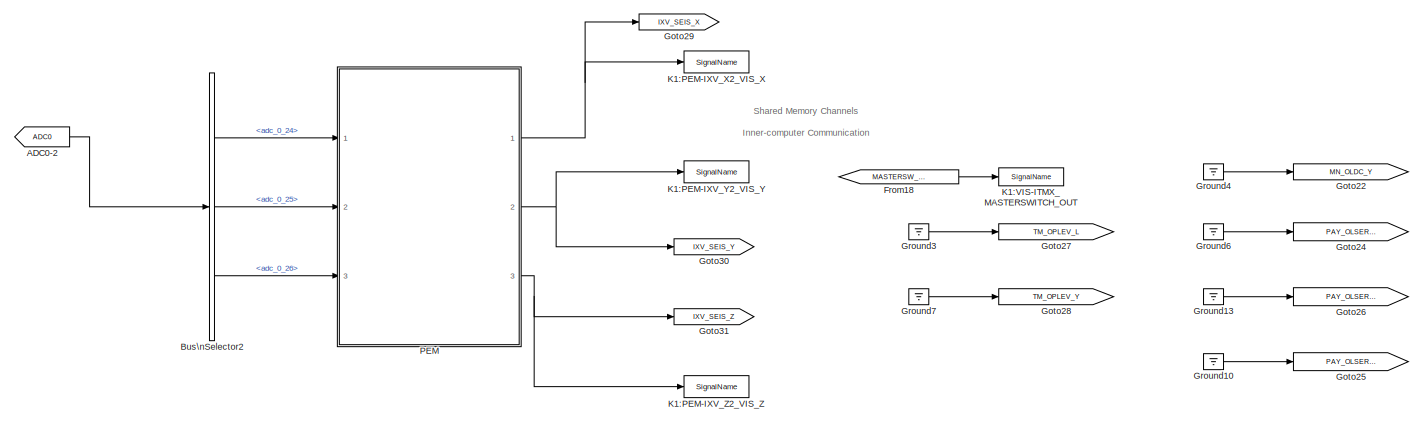
[diagram: root canvas - part 1/5, top left region]
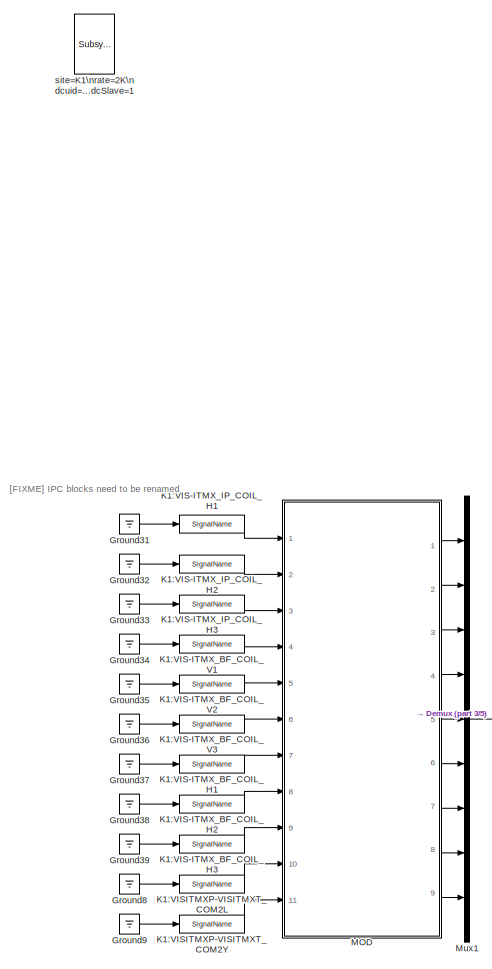
[diagram: root canvas - part 2/5, middle left region]
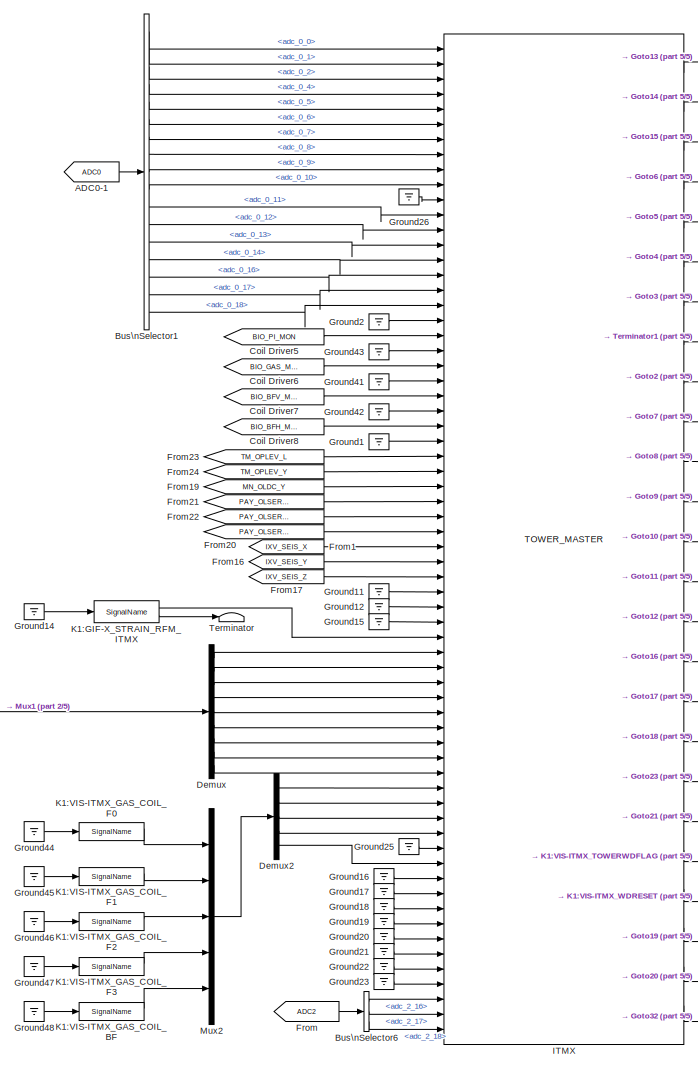
[diagram: root canvas - part 3/5, central region]
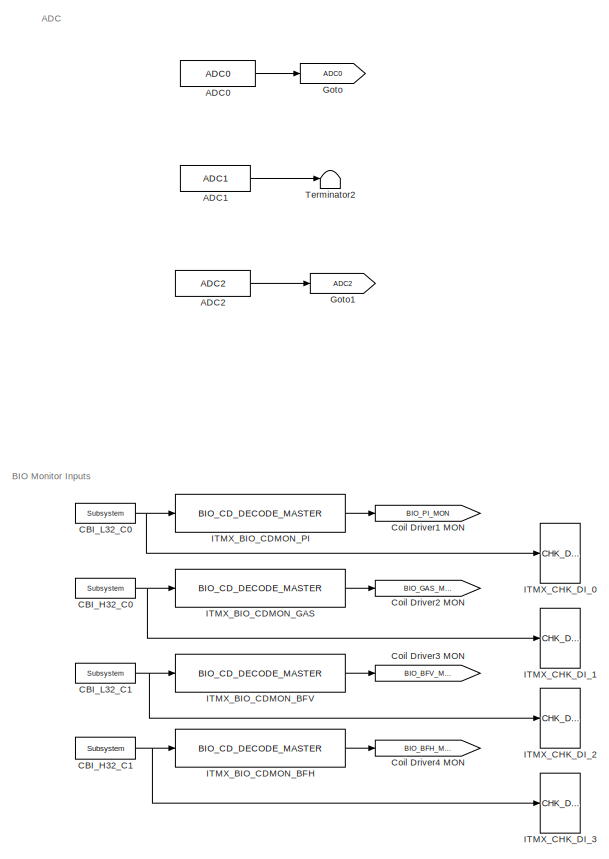
[diagram: root canvas - part 4/5, middle right region]
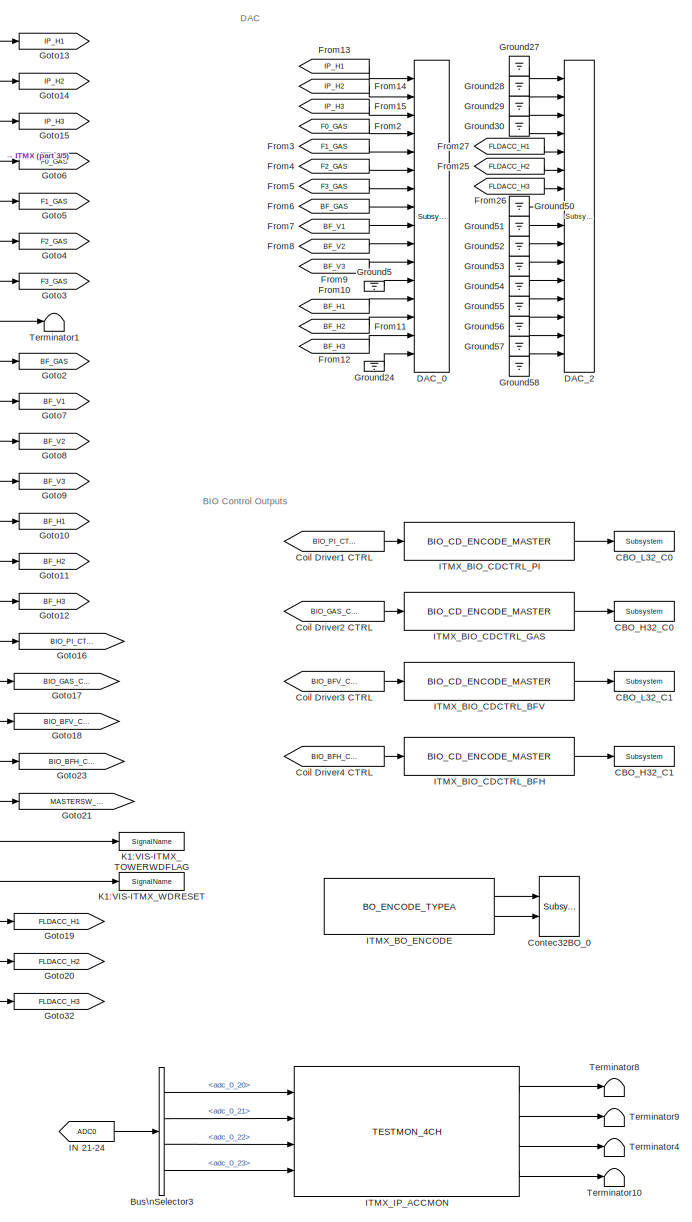
[diagram: root canvas - part 5/5, central region]
MODEL k1visitmxt
KIND model
BLOCK [Reference] ADC0  REF=cdsAdcx0/ADC0
  AttributesFormatString = %<Description>\\n%<Tag>
  Description = type-GSC_16AI64SSA\ncard_num=0
  Ports = [0, 1]
  SID = 51
  SourceBlock = cdsAdcx0/ADC0
  SourceType = SubSystem
  Tag = cdsAdc
BLOCK [From] ADC0-1
  GotoTag = ADC0
  SID = 695
BLOCK [From] ADC0-2
  GotoTag = ADC0
  SID = 856
BLOCK [Reference] ADC1  REF=cdsAdcx1/ADC1
  AttributesFormatString = %<Description>\\n%<Tag>
  Description = type-GSC_16AI64SSA\ncard_num=1
  Ports = [0, 1]
  SID = 958
  SourceBlock = cdsAdcx1/ADC1
  SourceType = SubSystem
  Tag = cdsAdc
BLOCK [Reference] ADC2  REF=cdsAdcx2/ADC2
  AttributesFormatString = %<Description>\\n%<Tag>
  Description = type-GSC_16AI64SSA\ncard_num=2
  Ports = [0, 1]
  SID = 959
  SourceBlock = cdsAdcx2/ADC2
  SourceType = SubSystem
  Tag = cdsAdc
BLOCK [BusSelector] Bus\nSelector1
  OutputSignals = adc_0_0,adc_0_1,adc_0_2,adc_0_4,adc_0_5,adc_0_6,adc_0_7,adc_0_8,adc_0_9,adc_0_10,adc_0_11,adc_0_12,adc_0_13,adc_0_14,adc_0_16,adc_0_17,adc_0_18
  Ports = [1, 17]
  SID = 694
BLOCK [BusSelector] Bus\nSelector2
  OutputSignals = adc_0_24,adc_0_25,adc_0_26
  Ports = [1, 3]
  SID = 857
BLOCK [BusSelector] Bus\nSelector3
  OutputSignals = adc_0_20,adc_0_21,adc_0_22,adc_0_23
  Ports = [1, 4]
  SID = 286
BLOCK [BusSelector] Bus\nSelector6
  AttributesFormatString = %<Description>
  Description = ADC Selector
  OutputSignals = adc_2_16,adc_2_17,adc_2_18
  Ports = [1, 3]
  SID = 964
BLOCK [Reference] CBI_H32_C0  REF=cdsCDI64/Subsystem
  AttributesFormatString = %<Tag>\\n%<Description>
  Description = card_num=1
  Ports = [0, 1]
  SID = 130
  SourceBlock = cdsCDI64/Subsystem
  SourceType = SubSystem
  Tag = cdsCDI64
BLOCK [Reference] CBI_H32_C1  REF=cdsCDI64/Subsystem
  AttributesFormatString = %<Tag>\\n%<Description>
  Description = card_num=3
  Ports = [0, 1]
  SID = 225
  SourceBlock = cdsCDI64/Subsystem
  SourceType = SubSystem
  Tag = cdsCDI64
BLOCK [Reference] CBI_L32_C0  REF=cdsCDI64/Subsystem
  AttributesFormatString = %<Tag>\\n%<Description>
  Description = card_num=0
  Ports = [0, 1]
  SID = 131
  SourceBlock = cdsCDI64/Subsystem
  SourceType = SubSystem
  Tag = cdsCDI64
BLOCK [Reference] CBI_L32_C1  REF=cdsCDI64/Subsystem
  AttributesFormatString = %<Tag>\\n%<Description>
  Description = card_num=2
  Ports = [0, 1]
  SID = 226
  SourceBlock = cdsCDI64/Subsystem
  SourceType = SubSystem
  Tag = cdsCDI64
BLOCK [Reference] CBO_H32_C0  REF=cdsCDO64/Subsystem
  AttributesFormatString = %<Tag>\\n%<Description>
  Description = card_num=1
  Ports = [1]
  SID = 132
  SourceBlock = cdsCDO64/Subsystem
  SourceType = SubSystem
  Tag = cdsCDO64
BLOCK [Reference] CBO_H32_C1  REF=cdsCDO64/Subsystem
  AttributesFormatString = %<Tag>\\n%<Description>
  Description = card_num=3
  Ports = [1]
  SID = 227
  SourceBlock = cdsCDO64/Subsystem
  SourceType = SubSystem
  Tag = cdsCDO64
BLOCK [Reference] CBO_L32_C0  REF=cdsCDO64/Subsystem
  AttributesFormatString = %<Tag>\\n%<Description>
  Description = card_num=0
  Ports = [1]
  SID = 133
  SourceBlock = cdsCDO64/Subsystem
  SourceType = SubSystem
  Tag = cdsCDO64
BLOCK [Reference] CBO_L32_C1  REF=cdsCDO64/Subsystem
  AttributesFormatString = %<Tag>\\n%<Description>
  Description = card_num=2
  Ports = [1]
  SID = 228
  SourceBlock = cdsCDO64/Subsystem
  SourceType = SubSystem
  Tag = cdsCDO64
BLOCK [From] Coil Driver1 CTRL
  GotoTag = BIO_PI_CTRL
  SID = 247
BLOCK [Goto] Coil Driver1 MON
  GotoTag = BIO_PI_MON
  SID = 258
BLOCK [From] Coil Driver2 CTRL
  GotoTag = BIO_GAS_CTRL
  SID = 253
BLOCK [Goto] Coil Driver2 MON
  GotoTag = BIO_GAS_MON
  SID = 259
BLOCK [From] Coil Driver3 CTRL
  GotoTag = BIO_BFV_CTRL
  SID = 254
BLOCK [Goto] Coil Driver3 MON
  GotoTag = BIO_BFV_MON
  SID = 260
BLOCK [From] Coil Driver4 CTRL
  GotoTag = BIO_BFH_CTRL
  SID = 265
BLOCK [Goto] Coil Driver4 MON
  GotoTag = BIO_BFH_MON
  SID = 261
BLOCK [From] Coil Driver5
  GotoTag = BIO_PI_MON
  SID = 266
BLOCK [From] Coil Driver6
  GotoTag = BIO_GAS_MON
  SID = 267
BLOCK [From] Coil Driver7
  GotoTag = BIO_BFV_MON
  SID = 268
BLOCK [From] Coil Driver8
  GotoTag = BIO_BFH_MON
  SID = 269
BLOCK [Reference] Contec32BO_0  REF=cdsCDO32/Subsystem
  AttributesFormatString = %<Tag>
  Description = Contec32 bit binary output module driver
  Ports = [2]
  SID = 418
  SourceBlock = cdsCDO32/Subsystem
  SourceType = SubSystem
  Tag = cdsCDO32
BLOCK [Reference] DAC_0  REF=dac/Subsystem  (lib defined in slx_40ef132df75b, slx_b7657ccccc5b, +4 more)
  AttributesFormatString = %<Description>
  Description = type=GSC_16AO16,\ncard_num=0
  Ports = [16]
  SID = 5
  SourceBlock = dac/Subsystem
  SourceType = SubSystem
BLOCK [Reference] DAC_2  REF=dac/Subsystem  (lib defined in slx_40ef132df75b, slx_b7657ccccc5b, +4 more)
  AttributesFormatString = %<Description>
  Description = type=GSC_16AO16,\ncard_num=2
  Ports = [16]
  SID = 966
  SourceBlock = dac/Subsystem
  SourceType = SubSystem
BLOCK [Demux] Demux
  DisplayOption = bar
  Outputs = 9
  Ports = [1, 9]
  SID = 845
BLOCK [Demux] Demux2
  DisplayOption = bar
  Outputs = 5
  Ports = [1, 5]
  SID = 938
BLOCK [From] From
  GotoTag = ADC2
  SID = 963
BLOCK [From] From1
  GotoTag = IXV_SEIS_X
  SID = 752
BLOCK [From] From10
  GotoTag = BF_H1
  SID = 215
BLOCK [From] From11
  GotoTag = BF_H2
  SID = 216
BLOCK [From] From12
  GotoTag = BF_H3
  SID = 217
BLOCK [From] From13
  GotoTag = IP_H1
  SID = 221
BLOCK [From] From14
  GotoTag = IP_H2
  SID = 222
BLOCK [From] From15
  GotoTag = IP_H3
  SID = 223
BLOCK [From] From16
  GotoTag = IXV_SEIS_Y
  SID = 753
BLOCK [From] From17
  GotoTag = IXV_SEIS_Z
  SID = 754
BLOCK [From] From18
  GotoTag = MASTERSW_CTRL
  SID = 755
BLOCK [From] From19
  GotoTag = MN_OLDC_Y
  SID = 758
BLOCK [From] From2
  GotoTag = F0_GAS
  SID = 152
BLOCK [From] From20
  GotoTag = PAY_OLSERVO_BFY
  SID = 759
BLOCK [From] From21
  GotoTag = PAY_OLSERVO_BFL
  SID = 769
BLOCK [From] From22
  GotoTag = PAY_OLSERVO_BFT
  SID = 770
BLOCK [From] From23
  GotoTag = TM_OPLEV_L
  SID = 771
BLOCK [From] From24
  GotoTag = TM_OPLEV_Y
  SID = 772
BLOCK [From] From25
  GotoTag = FLDACC_H2
  SID = 986
BLOCK [From] From26
  GotoTag = FLDACC_H3
  SID = 987
BLOCK [From] From27
  GotoTag = FLDACC_H1
  SID = 988
BLOCK [From] From3
  GotoTag = F1_GAS
  SID = 153
BLOCK [From] From4
  GotoTag = F2_GAS
  SID = 154
BLOCK [From] From5
  GotoTag = F3_GAS
  SID = 155
BLOCK [From] From6
  GotoTag = BF_GAS
  SID = 156
BLOCK [From] From7
  GotoTag = BF_V1
  SID = 212
BLOCK [From] From8
  GotoTag = BF_V2
  SID = 213
BLOCK [From] From9
  GotoTag = BF_V3
  SID = 214
BLOCK [Goto] Goto
  GotoTag = ADC0
  SID = 125
BLOCK [Goto] Goto1
  GotoTag = ADC2
  SID = 962
BLOCK [Goto] Goto10
  GotoTag = BF_H1
  SID = 209
BLOCK [Goto] Goto11
  GotoTag = BF_H2
  SID = 210
BLOCK [Goto] Goto12
  GotoTag = BF_H3
  SID = 211
BLOCK [Goto] Goto13
  GotoTag = IP_H1
  SID = 218
BLOCK [Goto] Goto14
  GotoTag = IP_H2
  SID = 219
BLOCK [Goto] Goto15
  GotoTag = IP_H3
  SID = 220
BLOCK [Goto] Goto16
  GotoTag = BIO_PI_CTRL
  SID = 248
BLOCK [Goto] Goto17
  GotoTag = BIO_GAS_CTRL
  SID = 251
BLOCK [Goto] Goto18
  GotoTag = BIO_BFV_CTRL
  SID = 252
BLOCK [Goto] Goto19
  GotoTag = FLDACC_H1
  SID = 967
BLOCK [Goto] Goto2
  GotoTag = BF_GAS
  SID = 177
BLOCK [Goto] Goto20
  GotoTag = FLDACC_H2
  SID = 968
BLOCK [Goto] Goto21
  GotoTag = MASTERSW_CTRL
  SID = 749
BLOCK [Goto] Goto22
  GotoTag = MN_OLDC_Y
  SID = 750
BLOCK [Goto] Goto23
  GotoTag = BIO_BFH_CTRL
  SID = 264
BLOCK [Goto] Goto24
  GotoTag = PAY_OLSERVO_BFY
  SID = 751
BLOCK [Goto] Goto25
  GotoTag = PAY_OLSERVO_BFL
  SID = 761
BLOCK [Goto] Goto26
  GotoTag = PAY_OLSERVO_BFT
  SID = 765
BLOCK [Goto] Goto27
  GotoTag = TM_OPLEV_L
  SID = 773
BLOCK [Goto] Goto28
  GotoTag = TM_OPLEV_Y
  SID = 777
BLOCK [Goto] Goto29
  GotoTag = IXV_SEIS_X
  SID = 865
BLOCK [Goto] Goto3
  GotoTag = F3_GAS
  SID = 148
BLOCK [Goto] Goto30
  GotoTag = IXV_SEIS_Y
  SID = 866
BLOCK [Goto] Goto31
  GotoTag = IXV_SEIS_Z
  SID = 867
BLOCK [Goto] Goto32
  GotoTag = FLDACC_H3
  SID = 969
BLOCK [Goto] Goto4
  GotoTag = F2_GAS
  SID = 149
BLOCK [Goto] Goto5
  GotoTag = F1_GAS
  SID = 150
BLOCK [Goto] Goto6
  GotoTag = F0_GAS
  SID = 151
BLOCK [Goto] Goto7
  GotoTag = BF_V1
  SID = 206
BLOCK [Goto] Goto8
  GotoTag = BF_V2
  SID = 207
BLOCK [Goto] Goto9
  GotoTag = BF_V3
  SID = 208
BLOCK [Ground] Ground1
  SID = 785
BLOCK [Ground] Ground10
  SID = 762
BLOCK [Ground] Ground11
  SID = 735
BLOCK [Ground] Ground12
  SID = 945
BLOCK [Ground] Ground13
  SID = 766
BLOCK [Ground] Ground14
  SID = 782
BLOCK [Ground] Ground15
  SID = 946
BLOCK [Ground] Ground16
  SID = 947
BLOCK [Ground] Ground17
  SID = 948
BLOCK [Ground] Ground18
  SID = 949
BLOCK [Ground] Ground19
  SID = 950
BLOCK [Ground] Ground2
  SID = 730
BLOCK [Ground] Ground20
  SID = 951
BLOCK [Ground] Ground21
  SID = 952
BLOCK [Ground] Ground22
  SID = 953
BLOCK [Ground] Ground23
  SID = 954
BLOCK [Ground] Ground24
  SID = 304
BLOCK [Ground] Ground25
  SID = 955
BLOCK [Ground] Ground26
  SID = 956
BLOCK [Ground] Ground27
  SID = 970
BLOCK [Ground] Ground28
  SID = 971
BLOCK [Ground] Ground29
  SID = 972
BLOCK [Ground] Ground3
  SID = 774
BLOCK [Ground] Ground30
  SID = 973
BLOCK [Ground] Ground31
  SID = 885
BLOCK [Ground] Ground32
  SID = 886
BLOCK [Ground] Ground33
  SID = 887
BLOCK [Ground] Ground34
  SID = 888
BLOCK [Ground] Ground35
  SID = 889
BLOCK [Ground] Ground36
  SID = 890
BLOCK [Ground] Ground37
  SID = 891
BLOCK [Ground] Ground38
  SID = 892
BLOCK [Ground] Ground39
  SID = 893
BLOCK [Ground] Ground4
  SID = 709
BLOCK [Ground] Ground41
  SID = 405
BLOCK [Ground] Ground42
  SID = 406
BLOCK [Ground] Ground43
  SID = 407
BLOCK [Ground] Ground44
  SID = 927
BLOCK [Ground] Ground45
  SID = 928
BLOCK [Ground] Ground46
  SID = 929
BLOCK [Ground] Ground47
  SID = 930
BLOCK [Ground] Ground48
  SID = 931
BLOCK [Ground] Ground5
  SID = 303
BLOCK [Ground] Ground50
  SID = 976
BLOCK [Ground] Ground51
  SID = 977
BLOCK [Ground] Ground52
  SID = 978
BLOCK [Ground] Ground53
  SID = 979
BLOCK [Ground] Ground54
  SID = 980
BLOCK [Ground] Ground55
  SID = 981
BLOCK [Ground] Ground56
  SID = 982
BLOCK [Ground] Ground57
  SID = 983
BLOCK [Ground] Ground58
  SID = 984
BLOCK [Ground] Ground6
  SID = 710
BLOCK [Ground] Ground7
  SID = 778
BLOCK [Ground] Ground8
  SID = 942
BLOCK [Ground] Ground9
  SID = 943
BLOCK [From] IN 21-24
  GotoTag = ADC0
  SID = 287
BLOCK [Reference] ITMX  REF=TOWER_MASTER/TOWER_MASTER
  Ports = [66, 25]
  SID = 944
  SourceBlock = TOWER_MASTER/TOWER_MASTER
  SourceType = SubSystem
BLOCK [Reference] ITMX_BIO_CDCTRL_BFH  REF=BIO_CD_ENCODE_MASTER/BIO_CD_ENCODE_MASTER
  Ports = [1, 1]
  SID = 244
  SourceBlock = BIO_CD_ENCODE_MASTER/BIO_CD_ENCODE_MASTER
  SourceType = SubSystem
BLOCK [Reference] ITMX_BIO_CDCTRL_BFV  REF=BIO_CD_ENCODE_MASTER/BIO_CD_ENCODE_MASTER
  Ports = [1, 1]
  SID = 243
  SourceBlock = BIO_CD_ENCODE_MASTER/BIO_CD_ENCODE_MASTER
  SourceType = SubSystem
BLOCK [Reference] ITMX_BIO_CDCTRL_GAS  REF=BIO_CD_ENCODE_MASTER/BIO_CD_ENCODE_MASTER
  Ports = [1, 1]
  SID = 242
  SourceBlock = BIO_CD_ENCODE_MASTER/BIO_CD_ENCODE_MASTER
  SourceType = SubSystem
BLOCK [Reference] ITMX_BIO_CDCTRL_PI  REF=BIO_CD_ENCODE_MASTER/BIO_CD_ENCODE_MASTER
  Ports = [1, 1]
  SID = 240
  SourceBlock = BIO_CD_ENCODE_MASTER/BIO_CD_ENCODE_MASTER
  SourceType = SubSystem
BLOCK [Reference] ITMX_BIO_CDMON_BFH  REF=BIO_CD_DECODE_MASTER/BIO_CD_DECODE_MASTER
  Ports = [1, 1]
  SID = 239
  SourceBlock = BIO_CD_DECODE_MASTER/BIO_CD_DECODE_MASTER
  SourceType = SubSystem
BLOCK [Reference] ITMX_BIO_CDMON_BFV  REF=BIO_CD_DECODE_MASTER/BIO_CD_DECODE_MASTER
  Ports = [1, 1]
  SID = 238
  SourceBlock = BIO_CD_DECODE_MASTER/BIO_CD_DECODE_MASTER
  SourceType = SubSystem
BLOCK [Reference] ITMX_BIO_CDMON_GAS  REF=BIO_CD_DECODE_MASTER/BIO_CD_DECODE_MASTER
  Ports = [1, 1]
  SID = 237
  SourceBlock = BIO_CD_DECODE_MASTER/BIO_CD_DECODE_MASTER
  SourceType = SubSystem
BLOCK [Reference] ITMX_BIO_CDMON_PI  REF=BIO_CD_DECODE_MASTER/BIO_CD_DECODE_MASTER
  Ports = [1, 1]
  SID = 235
  SourceBlock = BIO_CD_DECODE_MASTER/BIO_CD_DECODE_MASTER
  SourceType = SubSystem
BLOCK [Reference] ITMX_BO_ENCODE  REF=BO_TYPEA_MASTER/BO_ENCODE_TYPEA
  Ports = [0, 2]
  SID = 489
  SourceBlock = BO_TYPEA_MASTER/BO_ENCODE_TYPEA
  SourceType = SubSystem
BLOCK [Reference] ITMX_CHK_DI_0  REF=CHK_DIO/CHK_DI_0
  Ports = [1]
  SID = 683
  SourceBlock = CHK_DIO/CHK_DI_0
  SourceType = SubSystem
BLOCK [Reference] ITMX_CHK_DI_1  REF=CHK_DIO/CHK_DI_0
  Ports = [1]
  SID = 684
  SourceBlock = CHK_DIO/CHK_DI_0
  SourceType = SubSystem
BLOCK [Reference] ITMX_CHK_DI_2  REF=CHK_DIO/CHK_DI_0
  Ports = [1]
  SID = 685
  SourceBlock = CHK_DIO/CHK_DI_0
  SourceType = SubSystem
BLOCK [Reference] ITMX_CHK_DI_3  REF=CHK_DIO/CHK_DI_0
  Ports = [1]
  SID = 686
  SourceBlock = CHK_DIO/CHK_DI_0
  SourceType = SubSystem
BLOCK [Reference] ITMX_IP_ACCMON  REF=TESTMON_4CH_MASTER/TESTMON_4CH
  Ports = [4, 4]
  SID = 285
  SourceBlock = TESTMON_4CH_MASTER/TESTMON_4CH
  SourceType = SubSystem
BLOCK [Reference] K1:GIF-X_STRAIN_RFM_ITMX  REF=cdsIPCx/SignalName
  AttributesFormatString = %<Description>\\n%<Tag>
  Description = card=0
  Ports = [1, 2]
  SID = 783
  SourceBlock = cdsIPCx/SignalName
  SourceType = SubSystem
  Tag = cdsIPCx_RFM
BLOCK [Reference] K1:PEM-IXV_X2_VIS_X  REF=cdsIPCx/SignalName
  AttributesFormatString = %<Description>\\n%<Tag>
  Description = card=0
  Ports = [1, 2]
  SID = 849
  SourceBlock = cdsIPCx/SignalName
  SourceType = SubSystem
  Tag = cdsIPCx_RFM
BLOCK [Reference] K1:PEM-IXV_Y2_VIS_Y  REF=cdsIPCx/SignalName
  AttributesFormatString = %<Description>\\n%<Tag>
  Description = card=0
  Ports = [1, 2]
  SID = 851
  SourceBlock = cdsIPCx/SignalName
  SourceType = SubSystem
  Tag = cdsIPCx_RFM
BLOCK [Reference] K1:PEM-IXV_Z2_VIS_Z  REF=cdsIPCx/SignalName
  AttributesFormatString = %<Description>\\n%<Tag>
  Description = card=0
  Ports = [1, 2]
  SID = 853
  SourceBlock = cdsIPCx/SignalName
  SourceType = SubSystem
  Tag = cdsIPCx_RFM
BLOCK [Reference] K1:VIS-ITMX_BF_COIL_H1  REF=cdsIPCx/SignalName
  AttributesFormatString = %<Tag>
  Description = Inter-Process Communication via Shared memory.
  Ports = [1, 2]
  SID = 895
  SourceBlock = cdsIPCx/SignalName
  SourceType = SubSystem
  Tag = cdsIPCx_SHMEM
BLOCK [Reference] K1:VIS-ITMX_BF_COIL_H2  REF=cdsIPCx/SignalName
  AttributesFormatString = %<Tag>
  Description = Inter-Process Communication via Shared memory.
  Ports = [1, 2]
  SID = 896
  SourceBlock = cdsIPCx/SignalName
  SourceType = SubSystem
  Tag = cdsIPCx_SHMEM
BLOCK [Reference] K1:VIS-ITMX_BF_COIL_H3  REF=cdsIPCx/SignalName
  AttributesFormatString = %<Tag>
  Description = Inter-Process Communication via Shared memory.
  Ports = [1, 2]
  SID = 897
  SourceBlock = cdsIPCx/SignalName
  SourceType = SubSystem
  Tag = cdsIPCx_SHMEM
BLOCK [Reference] K1:VIS-ITMX_BF_COIL_V1  REF=cdsIPCx/SignalName
  AttributesFormatString = %<Tag>
  Description = Inter-Process Communication via Shared memory.
  Ports = [1, 2]
  SID = 898
  SourceBlock = cdsIPCx/SignalName
  SourceType = SubSystem
  Tag = cdsIPCx_SHMEM
BLOCK [Reference] K1:VIS-ITMX_BF_COIL_V2  REF=cdsIPCx/SignalName
  AttributesFormatString = %<Tag>
  Description = Inter-Process Communication via Shared memory.
  Ports = [1, 2]
  SID = 899
  SourceBlock = cdsIPCx/SignalName
  SourceType = SubSystem
  Tag = cdsIPCx_SHMEM
BLOCK [Reference] K1:VIS-ITMX_BF_COIL_V3  REF=cdsIPCx/SignalName
  AttributesFormatString = %<Tag>
  Description = Inter-Process Communication via Shared memory.
  Ports = [1, 2]
  SID = 900
  SourceBlock = cdsIPCx/SignalName
  SourceType = SubSystem
  Tag = cdsIPCx_SHMEM
BLOCK [Reference] K1:VIS-ITMX_GAS_COIL_BF  REF=cdsIPCx/SignalName
  AttributesFormatString = %<Tag>
  Description = Inter-Process Communication via Shared memory.
  Ports = [1, 2]
  SID = 932
  SourceBlock = cdsIPCx/SignalName
  SourceType = SubSystem
  Tag = cdsIPCx_SHMEM
BLOCK [Reference] K1:VIS-ITMX_GAS_COIL_F0  REF=cdsIPCx/SignalName
  AttributesFormatString = %<Tag>
  Description = Inter-Process Communication via Shared memory.
  Ports = [1, 2]
  SID = 933
  SourceBlock = cdsIPCx/SignalName
  SourceType = SubSystem
  Tag = cdsIPCx_SHMEM
BLOCK [Reference] K1:VIS-ITMX_GAS_COIL_F1  REF=cdsIPCx/SignalName
  AttributesFormatString = %<Tag>
  Description = Inter-Process Communication via Shared memory.
  Ports = [1, 2]
  SID = 934
  SourceBlock = cdsIPCx/SignalName
  SourceType = SubSystem
  Tag = cdsIPCx_SHMEM
BLOCK [Reference] K1:VIS-ITMX_GAS_COIL_F2  REF=cdsIPCx/SignalName
  AttributesFormatString = %<Tag>
  Description = Inter-Process Communication via Shared memory.
  Ports = [1, 2]
  SID = 935
  SourceBlock = cdsIPCx/SignalName
  SourceType = SubSystem
  Tag = cdsIPCx_SHMEM
BLOCK [Reference] K1:VIS-ITMX_GAS_COIL_F3  REF=cdsIPCx/SignalName
  AttributesFormatString = %<Tag>
  Description = Inter-Process Communication via Shared memory.
  Ports = [1, 2]
  SID = 936
  SourceBlock = cdsIPCx/SignalName
  SourceType = SubSystem
  Tag = cdsIPCx_SHMEM
BLOCK [Reference] K1:VIS-ITMX_IP_COIL_H1  REF=cdsIPCx/SignalName
  AttributesFormatString = %<Tag>
  Description = Inter-Process Communication via Shared memory.
  Ports = [1, 2]
  SID = 901
  SourceBlock = cdsIPCx/SignalName
  SourceType = SubSystem
  Tag = cdsIPCx_SHMEM
BLOCK [Reference] K1:VIS-ITMX_IP_COIL_H2  REF=cdsIPCx/SignalName
  AttributesFormatString = %<Tag>
  Description = Inter-Process Communication via Shared memory.
  Ports = [1, 2]
  SID = 902
  SourceBlock = cdsIPCx/SignalName
  SourceType = SubSystem
  Tag = cdsIPCx_SHMEM
BLOCK [Reference] K1:VIS-ITMX_IP_COIL_H3  REF=cdsIPCx/SignalName
  AttributesFormatString = %<Tag>
  Description = Inter-Process Communication via Shared memory.
  Ports = [1, 2]
  SID = 903
  SourceBlock = cdsIPCx/SignalName
  SourceType = SubSystem
  Tag = cdsIPCx_SHMEM
BLOCK [Reference] K1:VIS-ITMX_MASTERSWITCH_OUT  REF=cdsIPCx/SignalName
  AttributesFormatString = %<Tag>
  Description = Inter-Process Communication via Shared memory.
  Ports = [1, 2]
  SID = 696
  SourceBlock = cdsIPCx/SignalName
  SourceType = SubSystem
  Tag = cdsIPCx_SHMEM
BLOCK [Reference] K1:VIS-ITMX_TOWERWDFLAG  REF=cdsIPCx/SignalName
  AttributesFormatString = %<Tag>
  Description = Inter-Process Communication via Shared memory.
  Ports = [1, 2]
  SID = 712
  SourceBlock = cdsIPCx/SignalName
  SourceType = SubSystem
  Tag = cdsIPCx_SHMEM
BLOCK [Reference] K1:VIS-ITMX_WDRESET  REF=cdsIPCx/SignalName
  AttributesFormatString = %<Tag>
  Description = Inter-Process Communication via Shared memory.
  Ports = [1, 2]
  SID = 727
  SourceBlock = cdsIPCx/SignalName
  SourceType = SubSystem
  Tag = cdsIPCx_SHMEM
BLOCK [Reference] K1:VISITMXP-VISITMXT_COM2L  REF=cdsIPCx/SignalName
  AttributesFormatString = %<Tag>
  Description = Inter-Process Communication via Shared memory.
  Ports = [1, 2]
  SID = 939
  SourceBlock = cdsIPCx/SignalName
  SourceType = SubSystem
  Tag = cdsIPCx_SHMEM
BLOCK [Reference] K1:VISITMXP-VISITMXT_COM2Y  REF=cdsIPCx/SignalName
  AttributesFormatString = %<Tag>
  Description = Inter-Process Communication via Shared memory.
  Ports = [1, 2]
  SID = 940
  SourceBlock = cdsIPCx/SignalName
  SourceType = SubSystem
  Tag = cdsIPCx_SHMEM
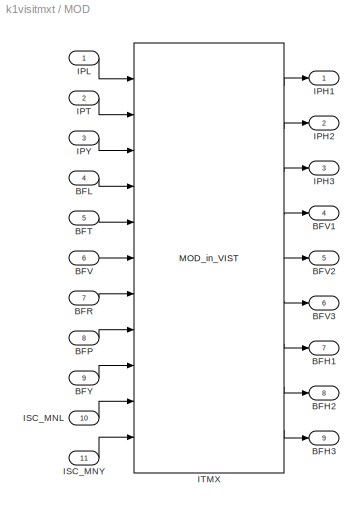
BLOCK [SubSystem] MOD
  Ports = [11, 9]
  RequestExecContextInheritance = off
  SID = 904
  Tag = top_names
  Variant = off
BLOCK [Outport] MOD/BFH1
  IconDisplay = Port number
  Port = 7
  SID = 922
BLOCK [Outport] MOD/BFH2
  IconDisplay = Port number
  Port = 8
  SID = 923
BLOCK [Outport] MOD/BFH3
  IconDisplay = Port number
  Port = 9
  SID = 924
BLOCK [Inport] MOD/BFL
  IconDisplay = Port number
  Port = 4
  SID = 908
BLOCK [Inport] MOD/BFP
  IconDisplay = Port number
  Port = 8
  SID = 912
BLOCK [Inport] MOD/BFR
  IconDisplay = Port number
  Port = 7
  SID = 911
BLOCK [Inport] MOD/BFT
  IconDisplay = Port number
  Port = 5
  SID = 909
BLOCK [Inport] MOD/BFV
  IconDisplay = Port number
  Port = 6
  SID = 910
BLOCK [Outport] MOD/BFV1
  IconDisplay = Port number
  Port = 4
  SID = 919
BLOCK [Outport] MOD/BFV2
  IconDisplay = Port number
  Port = 5
  SID = 920
BLOCK [Outport] MOD/BFV3
  IconDisplay = Port number
  Port = 6
  SID = 921
BLOCK [Inport] MOD/BFY
  IconDisplay = Port number
  Port = 9
  SID = 913
BLOCK [Outport] MOD/IPH1
  IconDisplay = Port number
  SID = 916
BLOCK [Outport] MOD/IPH2
  IconDisplay = Port number
  Port = 2
  SID = 917
BLOCK [Outport] MOD/IPH3
  IconDisplay = Port number
  Port = 3
  SID = 918
BLOCK [Inport] MOD/IPL
  IconDisplay = Port number
  SID = 905
BLOCK [Inport] MOD/IPT
  IconDisplay = Port number
  Port = 2
  SID = 906
BLOCK [Inport] MOD/IPY
  IconDisplay = Port number
  Port = 3
  SID = 907
BLOCK [Inport] MOD/ISC_MNL
  IconDisplay = Port number
  Port = 10
  SID = 914
BLOCK [Inport] MOD/ISC_MNY
  IconDisplay = Port number
  Port = 11
  SID = 941
BLOCK [Reference] MOD/ITMX  REF=VIS_LIB/MODAL/MOD_in_VIST
  Ports = [11, 9]
  SID = 915
  SourceBlock = VIS_LIB/MODAL/MOD_in_VIST
  SourceType = SubSystem
  Tag = top_names
BLOCK [Mux] Mux1
  DisplayOption = bar
  Inputs = 9
  Ports = [9, 1]
  SID = 925
BLOCK [Mux] Mux2
  DisplayOption = bar
  Inputs = 5
  Ports = [5, 1]
  SID = 937
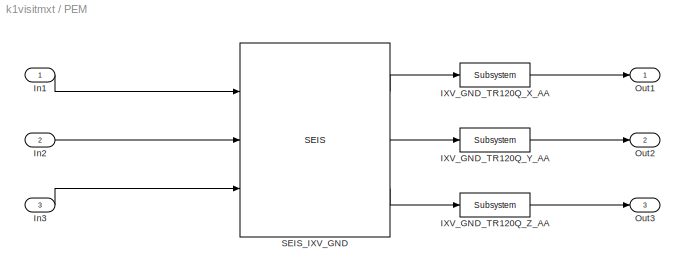
BLOCK [SubSystem] PEM
  AttributesFormatString = %<Tag>
  Ports = [3, 3]
  RequestExecContextInheritance = off
  SID = 871
  Tag = top_names
  Variant = off
BLOCK [Reference] PEM/IXV_GND_TR120Q_X_AA  REF=cdsFilt/Subsystem
  AttributesFormatString = %<Tag>
  Description = Purpose:                                                                                                                                                                                                                                  \nStandard CDS IIR filter module.                                                                                                                                     ...<+1302ch>  <repeated x3 — deduplicated; at blocks: IXV_GND_TR120Q_X_AA, IXV_GND_TR120Q_Y_AA, IXV_GND_TR120Q_Z_AA>
  Ports = [1, 1]
  SID = 875
  SourceBlock = cdsFilt/Subsystem
  SourceType = SubSystem
  Tag = cdsFilt
BLOCK [Reference] PEM/IXV_GND_TR120Q_Y_AA  REF=cdsFilt/Subsystem
  AttributesFormatString = %<Tag>
  Ports = [1, 1]
  SID = 876
  SourceBlock = cdsFilt/Subsystem
  SourceType = SubSystem
  Tag = cdsFilt
BLOCK [Reference] PEM/IXV_GND_TR120Q_Z_AA  REF=cdsFilt/Subsystem
  AttributesFormatString = %<Tag>
  Ports = [1, 1]
  SID = 877
  SourceBlock = cdsFilt/Subsystem
  SourceType = SubSystem
  Tag = cdsFilt
BLOCK [Inport] PEM/In1
  IconDisplay = Port number
  SID = 872
BLOCK [Inport] PEM/In2
  IconDisplay = Port number
  Port = 2
  SID = 873
BLOCK [Inport] PEM/In3
  IconDisplay = Port number
  Port = 3
  SID = 874
BLOCK [Outport] PEM/Out1
  IconDisplay = Port number
  SID = 879
BLOCK [Outport] PEM/Out2
  IconDisplay = Port number
  Port = 2
  SID = 880
BLOCK [Outport] PEM/Out3
  IconDisplay = Port number
  Port = 3
  SID = 881
BLOCK [Reference] PEM/SEIS_IXV_GND  REF=seis/SEIS
  Ports = [3, 3]
  SID = 878
  SourceBlock = seis/SEIS
  SourceType = SubSystem
BLOCK [Terminator] Terminator
  SID = 784
BLOCK [Terminator] Terminator1
  SID = 957
BLOCK [Terminator] Terminator10
  SID = 293
BLOCK [Terminator] Terminator2
  SID = 960
BLOCK [Terminator] Terminator4
  SID = 290
BLOCK [Terminator] Terminator8
  SID = 291
BLOCK [Terminator] Terminator9
  SID = 292
BLOCK [Reference] site=K1\nrate=2K\ndcuid=92\nhost=k1ix1\nspecific_cpu=2\nadcSlave=1  REF=cdsParameters/Subsystem
  AttributesFormatString = %<Tag>
  Description = Purpose:                                                                                                                                                                                                                                \nProvide system parameters to the FE code generator to properly configure the generated EPICS names, rep rate of the FE controller, and the Data Acquisition node ID fo...<+2934ch>
  Ports = []
  SID = 716
  SourceBlock = cdsParameters/Subsystem
  SourceType = SubSystem
  Tag = cdsParameters
ANNOTATION (root): \n \n BIO Control Outputs
ANNOTATION (root): \n \n BIO Monitor Inputs
ANNOTATION (root): \n \n DAC
ANNOTATION (root): \n \n [FIXME] IPC blocks need to be renamed
ANNOTATION (root): \n \n Shared Memory Channels \n Inner-computer Communication
ANNOTATION (root): \n \n ADC
LINE ADC0-1:1 -> Bus\nSelector1:1
LINE ADC0-2:1 -> Bus\nSelector2:1
LINE ADC0:1 -> Goto:1
LINE ADC1:1 -> Terminator2:1
LINE ADC2:1 -> Goto1:1
LINE Bus\nSelector1:1 -> ITMX:1
LINE Bus\nSelector1:10 -> ITMX:10
LINE Bus\nSelector1:11 -> ITMX:12
LINE Bus\nSelector1:12 -> ITMX:13
LINE Bus\nSelector1:13 -> ITMX:14
LINE Bus\nSelector1:14 -> ITMX:15
LINE Bus\nSelector1:15 -> ITMX:16
LINE Bus\nSelector1:16 -> ITMX:17
LINE Bus\nSelector1:17 -> ITMX:18
LINE Bus\nSelector1:2 -> ITMX:2
LINE Bus\nSelector1:3 -> ITMX:3
LINE Bus\nSelector1:4 -> ITMX:4
LINE Bus\nSelector1:5 -> ITMX:5
LINE Bus\nSelector1:6 -> ITMX:6
LINE Bus\nSelector1:7 -> ITMX:7
LINE Bus\nSelector1:8 -> ITMX:8
LINE Bus\nSelector1:9 -> ITMX:9
LINE Bus\nSelector2:1 -> PEM:1
LINE Bus\nSelector2:2 -> PEM:2
LINE Bus\nSelector2:3 -> PEM:3
LINE Bus\nSelector3:1 -> ITMX_IP_ACCMON:1
LINE Bus\nSelector3:2 -> ITMX_IP_ACCMON:2
LINE Bus\nSelector3:3 -> ITMX_IP_ACCMON:3
LINE Bus\nSelector3:4 -> ITMX_IP_ACCMON:4
LINE Bus\nSelector6:1 -> ITMX:64
LINE Bus\nSelector6:2 -> ITMX:65
LINE Bus\nSelector6:3 -> ITMX:66
NET CBI_H32_C0:1 -> ITMX_BIO_CDMON_GAS:1, ITMX_CHK_DI_1:1
NET CBI_H32_C1:1 -> ITMX_BIO_CDMON_BFH:1, ITMX_CHK_DI_3:1
NET CBI_L32_C0:1 -> ITMX_BIO_CDMON_PI:1, ITMX_CHK_DI_0:1
NET CBI_L32_C1:1 -> ITMX_BIO_CDMON_BFV:1, ITMX_CHK_DI_2:1
LINE Coil Driver1 CTRL:1 -> ITMX_BIO_CDCTRL_PI:1
LINE Coil Driver2 CTRL:1 -> ITMX_BIO_CDCTRL_GAS:1
LINE Coil Driver3 CTRL:1 -> ITMX_BIO_CDCTRL_BFV:1
LINE Coil Driver4 CTRL:1 -> ITMX_BIO_CDCTRL_BFH:1
LINE Coil Driver5:1 -> ITMX:20
LINE Coil Driver6:1 -> ITMX:22
LINE Coil Driver7:1 -> ITMX:24
LINE Coil Driver8:1 -> ITMX:26
LINE Demux2:1 -> ITMX:50
LINE Demux2:2 -> ITMX:51
LINE Demux2:3 -> ITMX:52
LINE Demux2:4 -> ITMX:53
LINE Demux2:5 -> ITMX:55
LINE Demux:1 -> ITMX:41
LINE Demux:2 -> ITMX:42
LINE Demux:3 -> ITMX:43
LINE Demux:4 -> ITMX:44
LINE Demux:5 -> ITMX:45
LINE Demux:6 -> ITMX:46
LINE Demux:7 -> ITMX:47
LINE Demux:8 -> ITMX:48
LINE Demux:9 -> ITMX:49
LINE From10:1 -> DAC_0:13
LINE From11:1 -> DAC_0:14
LINE From12:1 -> DAC_0:15
LINE From13:1 -> DAC_0:1
LINE From14:1 -> DAC_0:2
LINE From15:1 -> DAC_0:3
LINE From16:1 -> ITMX:35
LINE From17:1 -> ITMX:36
LINE From18:1 -> K1:VIS-ITMX_MASTERSWITCH_OUT:1
LINE From19:1 -> ITMX:30
LINE From1:1 -> ITMX:34
LINE From20:1 -> ITMX:33
LINE From21:1 -> ITMX:31
LINE From22:1 -> ITMX:32
LINE From23:1 -> ITMX:28
LINE From24:1 -> ITMX:29
LINE From25:1 -> DAC_2:6
LINE From26:1 -> DAC_2:7
LINE From27:1 -> DAC_2:5
LINE From2:1 -> DAC_0:4
LINE From3:1 -> DAC_0:5
LINE From4:1 -> DAC_0:6
LINE From5:1 -> DAC_0:7
LINE From6:1 -> DAC_0:8
LINE From7:1 -> DAC_0:9
LINE From8:1 -> DAC_0:10
LINE From9:1 -> DAC_0:11
LINE From:1 -> Bus\nSelector6:1
LINE Ground10:1 -> Goto25:1
LINE Ground11:1 -> ITMX:37
LINE Ground12:1 -> ITMX:38
LINE Ground13:1 -> Goto26:1
LINE Ground14:1 -> K1:GIF-X_STRAIN_RFM_ITMX:1
LINE Ground15:1 -> ITMX:39
LINE Ground16:1 -> ITMX:56
LINE Ground17:1 -> ITMX:57
LINE Ground18:1 -> ITMX:58
LINE Ground19:1 -> ITMX:59
LINE Ground1:1 -> ITMX:27
LINE Ground20:1 -> ITMX:60
LINE Ground21:1 -> ITMX:61
LINE Ground22:1 -> ITMX:62
LINE Ground23:1 -> ITMX:63
LINE Ground24:1 -> DAC_0:16
LINE Ground25:1 -> ITMX:54
LINE Ground26:1 -> ITMX:11
LINE Ground27:1 -> DAC_2:1
LINE Ground28:1 -> DAC_2:2
LINE Ground29:1 -> DAC_2:3
LINE Ground2:1 -> ITMX:19
LINE Ground30:1 -> DAC_2:4
LINE Ground31:1 -> K1:VIS-ITMX_IP_COIL_H1:1
LINE Ground32:1 -> K1:VIS-ITMX_IP_COIL_H2:1
LINE Ground33:1 -> K1:VIS-ITMX_IP_COIL_H3:1
LINE Ground34:1 -> K1:VIS-ITMX_BF_COIL_V1:1
LINE Ground35:1 -> K1:VIS-ITMX_BF_COIL_V2:1
LINE Ground36:1 -> K1:VIS-ITMX_BF_COIL_V3:1
LINE Ground37:1 -> K1:VIS-ITMX_BF_COIL_H1:1
LINE Ground38:1 -> K1:VIS-ITMX_BF_COIL_H2:1
LINE Ground39:1 -> K1:VIS-ITMX_BF_COIL_H3:1
LINE Ground3:1 -> Goto27:1
LINE Ground41:1 -> ITMX:23
LINE Ground42:1 -> ITMX:25
LINE Ground43:1 -> ITMX:21
LINE Ground44:1 -> K1:VIS-ITMX_GAS_COIL_F0:1
LINE Ground45:1 -> K1:VIS-ITMX_GAS_COIL_F1:1
LINE Ground46:1 -> K1:VIS-ITMX_GAS_COIL_F2:1
LINE Ground47:1 -> K1:VIS-ITMX_GAS_COIL_F3:1
LINE Ground48:1 -> K1:VIS-ITMX_GAS_COIL_BF:1
LINE Ground4:1 -> Goto22:1
LINE Ground50:1 -> DAC_2:8
LINE Ground51:1 -> DAC_2:9
LINE Ground52:1 -> DAC_2:10
LINE Ground53:1 -> DAC_2:11
LINE Ground54:1 -> DAC_2:12
LINE Ground55:1 -> DAC_2:13
LINE Ground56:1 -> DAC_2:14
LINE Ground57:1 -> DAC_2:15
LINE Ground58:1 -> DAC_2:16
LINE Ground5:1 -> DAC_0:12
LINE Ground6:1 -> Goto24:1
LINE Ground7:1 -> Goto28:1
LINE Ground8:1 -> K1:VISITMXP-VISITMXT_COM2L:1
LINE Ground9:1 -> K1:VISITMXP-VISITMXT_COM2Y:1
LINE IN 21-24:1 -> Bus\nSelector3:1
LINE ITMX:1 -> Goto13:1
LINE ITMX:10 -> Goto7:1
LINE ITMX:11 -> Goto8:1
LINE ITMX:12 -> Goto9:1
LINE ITMX:13 -> Goto10:1
LINE ITMX:14 -> Goto11:1
LINE ITMX:15 -> Goto12:1
LINE ITMX:16 -> Goto16:1
LINE ITMX:17 -> Goto17:1
LINE ITMX:18 -> Goto18:1
LINE ITMX:19 -> Goto23:1
LINE ITMX:2 -> Goto14:1
LINE ITMX:20 -> Goto21:1
LINE ITMX:21 -> K1:VIS-ITMX_TOWERWDFLAG:1
LINE ITMX:22 -> K1:VIS-ITMX_WDRESET:1
LINE ITMX:23 -> Goto19:1
LINE ITMX:24 -> Goto20:1
LINE ITMX:25 -> Goto32:1
LINE ITMX:3 -> Goto15:1
LINE ITMX:4 -> Goto6:1
LINE ITMX:5 -> Goto5:1
LINE ITMX:6 -> Goto4:1
LINE ITMX:7 -> Goto3:1
LINE ITMX:8 -> Terminator1:1
LINE ITMX:9 -> Goto2:1
LINE ITMX_BIO_CDCTRL_BFH:1 -> CBO_H32_C1:1
LINE ITMX_BIO_CDCTRL_BFV:1 -> CBO_L32_C1:1
LINE ITMX_BIO_CDCTRL_GAS:1 -> CBO_H32_C0:1
LINE ITMX_BIO_CDCTRL_PI:1 -> CBO_L32_C0:1
LINE ITMX_BIO_CDMON_BFH:1 -> Coil Driver4 MON:1
LINE ITMX_BIO_CDMON_BFV:1 -> Coil Driver3 MON:1
LINE ITMX_BIO_CDMON_GAS:1 -> Coil Driver2 MON:1
LINE ITMX_BIO_CDMON_PI:1 -> Coil Driver1 MON:1
LINE ITMX_BO_ENCODE:1 -> Contec32BO_0:1
LINE ITMX_BO_ENCODE:2 -> Contec32BO_0:2
LINE ITMX_IP_ACCMON:1 -> Terminator8:1
LINE ITMX_IP_ACCMON:2 -> Terminator9:1
LINE ITMX_IP_ACCMON:3 -> Terminator4:1
LINE ITMX_IP_ACCMON:4 -> Terminator10:1
LINE K1:GIF-X_STRAIN_RFM_ITMX:1 -> ITMX:40
LINE K1:GIF-X_STRAIN_RFM_ITMX:2 -> Terminator:1
LINE K1:VIS-ITMX_BF_COIL_H1:1 -> MOD:7
LINE K1:VIS-ITMX_BF_COIL_H2:1 -> MOD:8
LINE K1:VIS-ITMX_BF_COIL_H3:1 -> MOD:9
LINE K1:VIS-ITMX_BF_COIL_V1:1 -> MOD:4
LINE K1:VIS-ITMX_BF_COIL_V2:1 -> MOD:5
LINE K1:VIS-ITMX_BF_COIL_V3:1 -> MOD:6
LINE K1:VIS-ITMX_GAS_COIL_BF:1 -> Mux2:5
LINE K1:VIS-ITMX_GAS_COIL_F0:1 -> Mux2:1
LINE K1:VIS-ITMX_GAS_COIL_F1:1 -> Mux2:2
LINE K1:VIS-ITMX_GAS_COIL_F2:1 -> Mux2:3
LINE K1:VIS-ITMX_GAS_COIL_F3:1 -> Mux2:4
LINE K1:VIS-ITMX_IP_COIL_H1:1 -> MOD:1
LINE K1:VIS-ITMX_IP_COIL_H2:1 -> MOD:2
LINE K1:VIS-ITMX_IP_COIL_H3:1 -> MOD:3
LINE K1:VISITMXP-VISITMXT_COM2L:1 -> MOD:10
LINE K1:VISITMXP-VISITMXT_COM2Y:1 -> MOD:11
LINE MOD/BFL:1 -> MOD/ITMX:4
LINE MOD/BFP:1 -> MOD/ITMX:8
LINE MOD/BFR:1 -> MOD/ITMX:7
LINE MOD/BFT:1 -> MOD/ITMX:5
LINE MOD/BFV:1 -> MOD/ITMX:6
LINE MOD/BFY:1 -> MOD/ITMX:9
LINE MOD/IPL:1 -> MOD/ITMX:1
LINE MOD/IPT:1 -> MOD/ITMX:2
LINE MOD/IPY:1 -> MOD/ITMX:3
LINE MOD/ISC_MNL:1 -> MOD/ITMX:10
LINE MOD/ISC_MNY:1 -> MOD/ITMX:11
LINE MOD/ITMX:1 -> MOD/IPH1:1
LINE MOD/ITMX:2 -> MOD/IPH2:1
LINE MOD/ITMX:3 -> MOD/IPH3:1
LINE MOD/ITMX:4 -> MOD/BFV1:1
LINE MOD/ITMX:5 -> MOD/BFV2:1
LINE MOD/ITMX:6 -> MOD/BFV3:1
LINE MOD/ITMX:7 -> MOD/BFH1:1
LINE MOD/ITMX:8 -> MOD/BFH2:1
LINE MOD/ITMX:9 -> MOD/BFH3:1
LINE MOD:1 -> Mux1:1
LINE MOD:2 -> Mux1:2
LINE MOD:3 -> Mux1:3
LINE MOD:4 -> Mux1:4
LINE MOD:5 -> Mux1:5
LINE MOD:6 -> Mux1:6
LINE MOD:7 -> Mux1:7
LINE MOD:8 -> Mux1:8
LINE MOD:9 -> Mux1:9
LINE Mux1:1 -> Demux:1
LINE Mux2:1 -> Demux2:1
LINE PEM/IXV_GND_TR120Q_X_AA:1 -> PEM/Out1:1
LINE PEM/IXV_GND_TR120Q_Y_AA:1 -> PEM/Out2:1
LINE PEM/IXV_GND_TR120Q_Z_AA:1 -> PEM/Out3:1
LINE PEM/In1:1 -> PEM/SEIS_IXV_GND:1
LINE PEM/In2:1 -> PEM/SEIS_IXV_GND:2
LINE PEM/In3:1 -> PEM/SEIS_IXV_GND:3
LINE PEM/SEIS_IXV_GND:1 -> PEM/IXV_GND_TR120Q_X_AA:1
LINE PEM/SEIS_IXV_GND:2 -> PEM/IXV_GND_TR120Q_Y_AA:1
LINE PEM/SEIS_IXV_GND:3 -> PEM/IXV_GND_TR120Q_Z_AA:1
NET PEM:1 -> Goto29:1, K1:PEM-IXV_X2_VIS_X:1
NET PEM:2 -> Goto30:1, K1:PEM-IXV_Y2_VIS_Y:1
NET PEM:3 -> Goto31:1, K1:PEM-IXV_Z2_VIS_Z:1
note: NET lines group one-source signal fan-out (src -> all destinations, sorted); 1:1 wires keep LINE
